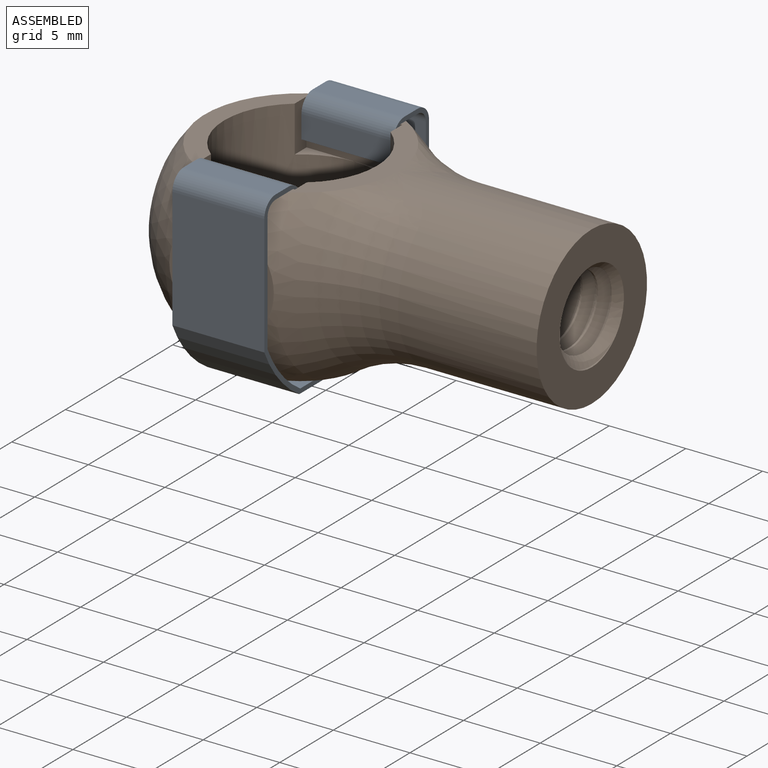
[diagram: assembled view]
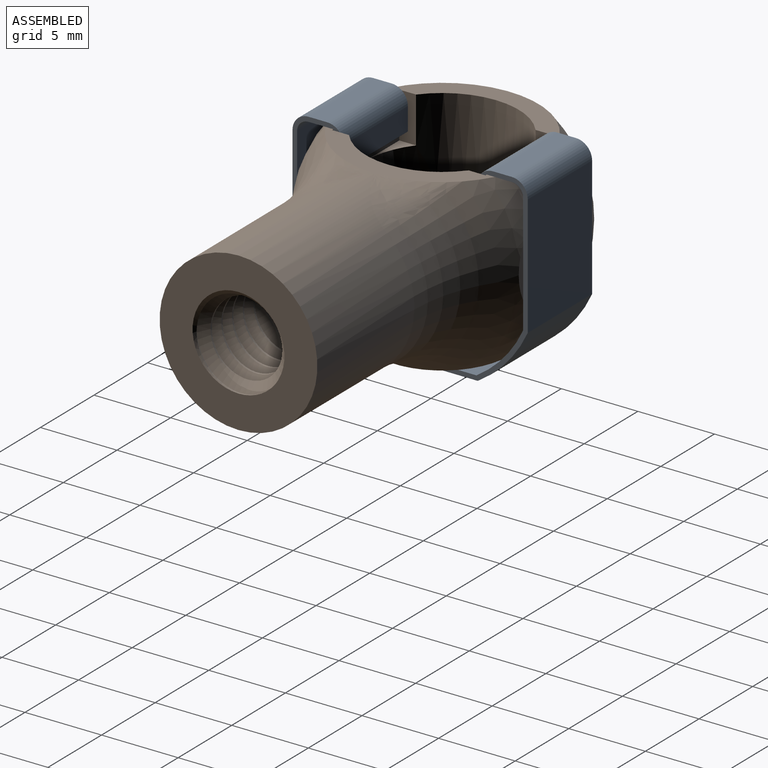
[diagram: assembled view, second angle]
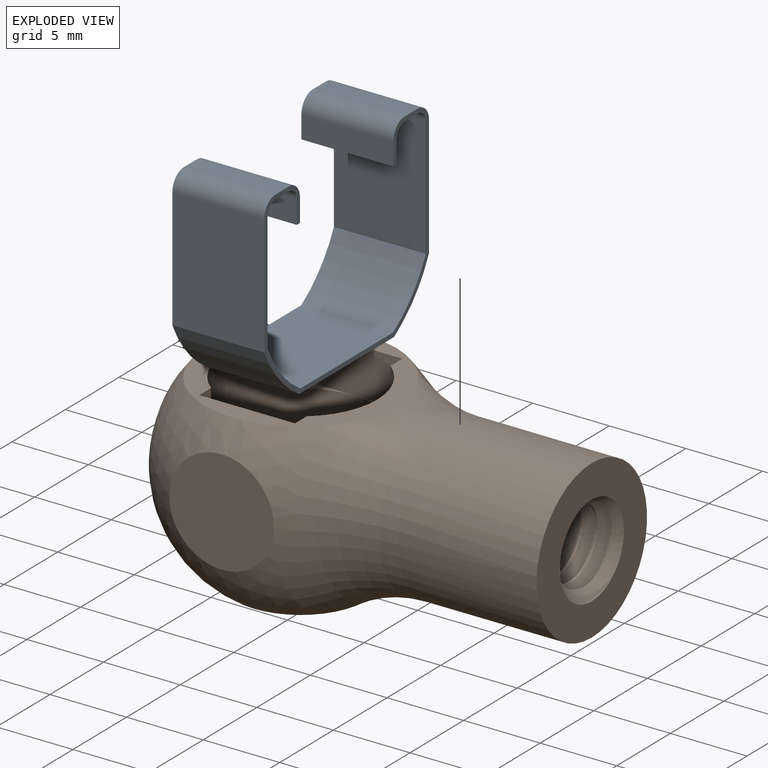
[diagram: exploded view]
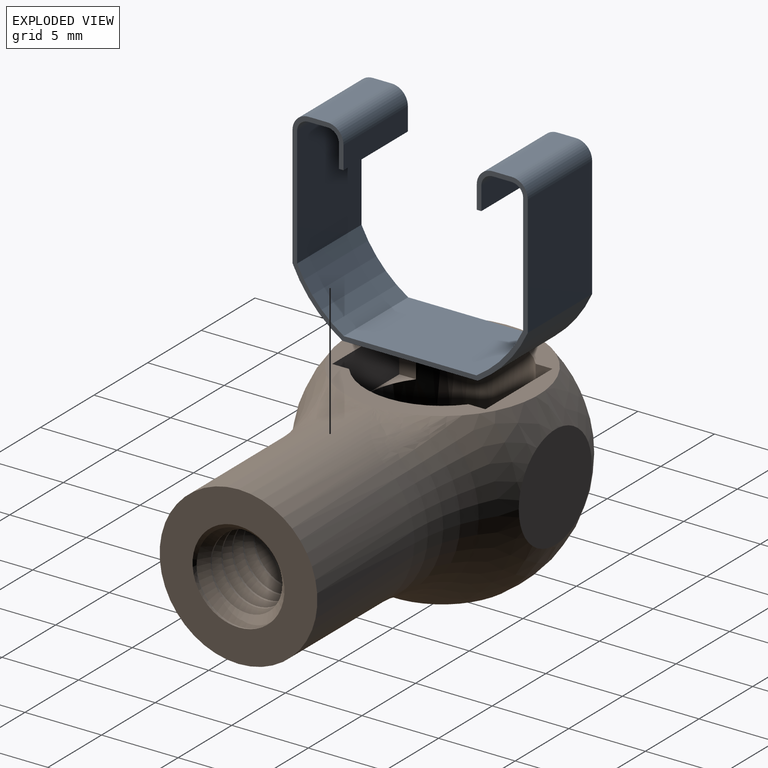
[diagram: exploded view, second angle]
ASSEMBLY  parts=2 mates=2
PART A: 30 faces, bbox 6x15.4x12.6 mm
  f0: plane 6x1.5mm, normal (0,1,0), area 9mm2, adj f1,f27,f28,f29
  f1: plane 6x0.3mm, normal (0,0,1), area 1.8mm2, adj f0,f2,f28,f29
  f2: plane 6x1.5mm, normal (0,-1,0), area 9mm2, adj f1,f3,f28,f29
  f3: cylinder r=0.75mm len=6mm, axis (-1,0,0), area 7.1mm2, adj f2,f4,f28,f29
  f4: plane 6x1.23mm, normal (0,0,1), area 7.4mm2, adj f3,f5,f28,f29
  f5: cylinder r=0.75mm len=6mm, axis (-1,0,0), area 7.1mm2, adj f4,f6,f28,f29
  f6: plane 7.81x6mm, normal (0,1,0), area 46.9mm2, adj f5,f7,f28,f29
  f7: cylinder r=8.13mm len=6mm, axis (-1,0,0), area 28.1mm2, adj f6,f8,f28,f29
  f8: plane 8.66x6mm, normal (0,0,-1), area 52mm2, adj f7,f9,f28,f29
  f9: cylinder r=8.13mm len=6mm, axis (-1,0,0), area 28.1mm2, adj f8,f10,f28,f29
  f10: plane 7.81x6mm, normal (0,-1,0), area 46.9mm2, adj f9,f11,f28,f29
  f11: cylinder r=0.75mm len=6mm, axis (-1,0,0), area 7.1mm2, adj f10,f12,f28,f29
  f12: plane 6x1.23mm, normal (0,0,1), area 7.4mm2, adj f11,f13,f28,f29
  f13: cylinder r=0.75mm len=6mm, axis (-1,0,0), area 7.1mm2, adj f12,f14,f28,f29
  f14: plane 6x1.5mm, normal (0,1,0), area 9mm2, adj f13,f15,f28,f29
  f15: plane 6x0.3mm, normal (0,0,1), area 1.8mm2, adj f14,f16,f28,f29
  f16: plane 6x1.5mm, normal (0,-1,0), area 9mm2, adj f15,f17,f28,f29
  f17: cylinder r=1.05mm len=6mm, axis (-1,0,0), area 9.9mm2, adj f16,f18,f28,f29
  f18: plane 6x1.23mm, normal (0,0,-1), area 7.4mm2, adj f17,f19,f28,f29
  f19: cylinder r=1.05mm len=6mm, axis (-1,0,0), area 9.9mm2, adj f18,f20,f28,f29
  f20: plane 7.88x6mm, normal (0,1,0), area 47.3mm2, adj f19,f21,f28,f29
  f21: cylinder r=8.43mm len=6mm, axis (-1,0,0), area 30mm2, adj f20,f22,f28,f29
  f22: plane 8.83x6mm, normal (0,0,1), area 53mm2, adj f21,f23,f28,f29
  f23: cylinder r=8.43mm len=6mm, axis (-1,0,0), area 30mm2, adj f22,f24,f28,f29
  f24: plane 7.88x6mm, normal (0,-1,0), area 47.3mm2, adj f23,f25,f28,f29
  f25: cylinder r=1.05mm len=6mm, axis (-1,0,0), area 9.9mm2, adj f24,f26,f28,f29
  f26: plane 6x1.23mm, normal (0,0,-1), area 7.4mm2, adj f25,f27,f28,f29
  f27: cylinder r=1.05mm len=6mm, axis (-1,0,0), area 9.9mm2, adj f0,f26,f28,f29
  f28: plane 15.36x12.63mm, normal (1,0,0), area 13.6mm2, adj f0,f1,f2,f3,f4,f5,f6,f7
  f29: plane 15.36x12.63mm, normal (-1,0,0), area 13.6mm2, adj f0,f1,f2,f3,f4,f5,f6,f7
PART B: 28 faces, bbox 27.9x17.8x17.2 mm
  f0: plane 5.77x5.76mm, normal (1,0,0), area 22.7mm2, adj f8,f9,f10,f11
  f1: plane 10.3x10.3mm, normal (1,0,0), area 55mm2, adj f3,f8,f12
  f2: sphere r=8.13mm, area 366mm2, adj f4,f7,f14,f16,f17
  f3: cylinder r=5.15mm len=12.71mm, axis (-1,0,0), area 301.1mm2, adj f1,f13,f14,f15
  f4: plane 12.58x12.58mm, normal (0,0,-1), area 41.3mm2, adj f2,f5,f13,f15,f19,f21,f22,f23
  f5: cylinder r=5mm len=10mm, axis (0,0,1), area 121.3mm2, adj f4,f6,f18,f19,f20,f21,f23,f24
  f6: sphere r=5mm, area 157.1mm2, adj f5
  f7: plane 8.66x8.66mm, normal (0,0,1), area 58.9mm2, adj f2
  f8: cylinder r=3mm len=8.5mm, axis (-1,0,0), area 19.9mm2, adj f0,f1,f9,f10
  f9: bspline ~9.38x6mm, area 103.4mm2, adj f0,f8,f11,f12
  f10: bspline ~9x6mm, area 103.1mm2, adj f0,f8,f11,f12
  f11: cylinder r=2.35mm len=7.85mm, axis (1,0,0), area 14.5mm2, adj f0,f9,f10,f12
  f12: cone r=3mm half-angle=45deg, axis (1,0,0), area 8mm2, adj f1,f9,f10,f11
  f13: bspline ~5.98x4.88mm, area 11.8mm2, adj f3,f4,f14
  f14: torus R=15.15mm, axis (-1,0,0), area 161.2mm2, adj f2,f3,f13,f15
  f15: bspline ~5.98x4.88mm, area 11.8mm2, adj f3,f4,f14
  f16: plane 6.82x6.82mm, normal (0,-1,0), area 36.5mm2, adj f2
  f17: plane 6.82x6.82mm, normal (0,1,0), area 36.5mm2, adj f2
  f18: plane 3.13x1.1mm, normal (0,0,-1), area 1.1mm2, adj f5,f19,f22
  f19: plane 3x1.1mm, normal (-1,0,0), area 3.3mm2, adj f4,f5,f18,f22
  f20: plane 3.13x1.1mm, normal (0,0,-1), area 1.1mm2, adj f5,f21,f22
  f21: plane 3x1.1mm, normal (1,0,0), area 3.3mm2, adj f4,f5,f20,f22
  f22: plane 6.25x3mm, normal (0,-1,0), area 18.8mm2, adj f4,f18,f19,f20,f21
  f23: plane 3x1.1mm, normal (-1,0,0), area 3.3mm2, adj f4,f5,f25,f27
  f24: plane 3x1.1mm, normal (1,0,0), area 3.3mm2, adj f4,f5,f25,f26
  f25: plane 6.25x3mm, normal (0,1,0), area 18.8mm2, adj f4,f23,f24,f26,f27
  f26: plane 3.13x1.1mm, normal (0,0,-1), area 1.1mm2, adj f5,f24,f25
  f27: plane 3.13x1.1mm, normal (0,0,-1), area 1.1mm2, adj f5,f23,f25
PLACE A rot(axis=(1,0,0),180deg) t=(-12.15,-16.41,3.8)mm
PLACE B rot(axis=(1,0,0),180deg) t=(-12.15,-16.41,3.8)mm
MATE planar B.f4 <-> A.f12  axis (0,0,1) through (-21.65,-21.41,8.95)mm
MATE planar A.f6 <-> B.f16  axis (0,-1,0) through (-21.65,-9.03,0.39)mm
